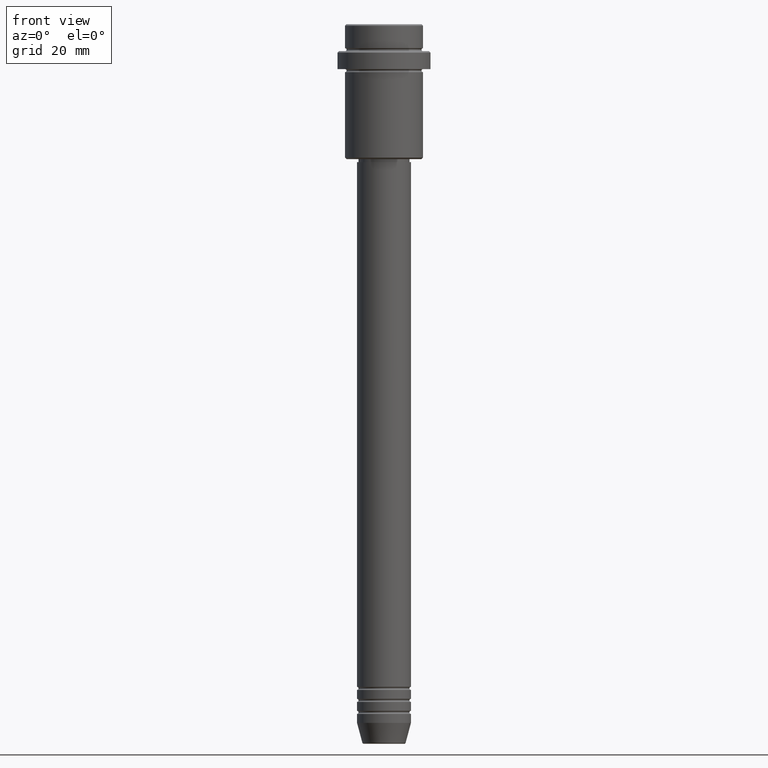
[diagram: clean part render]
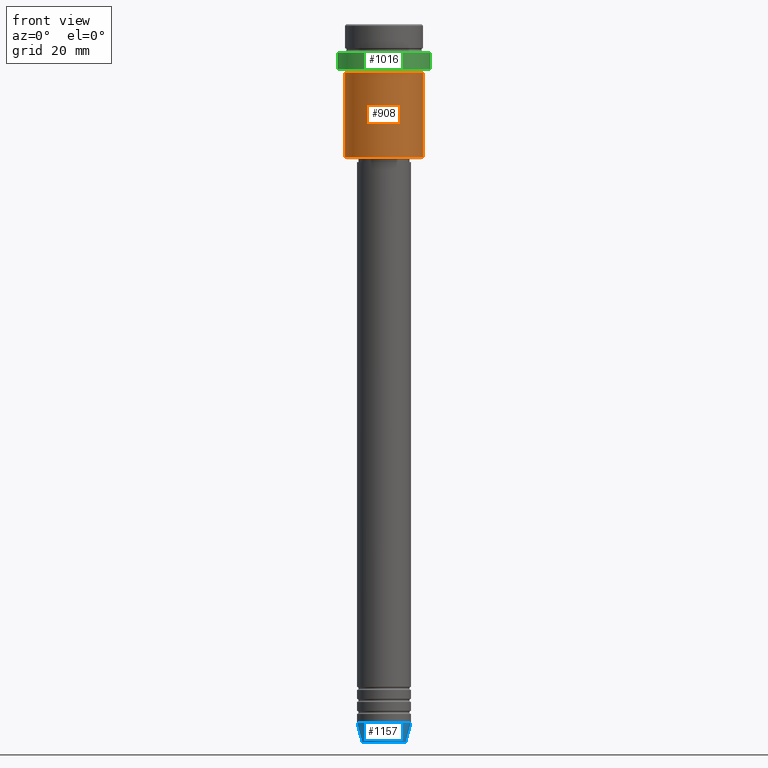
[diagram: same view with three faces highlighted in distinct colors, each labeled with its STEP entity id]
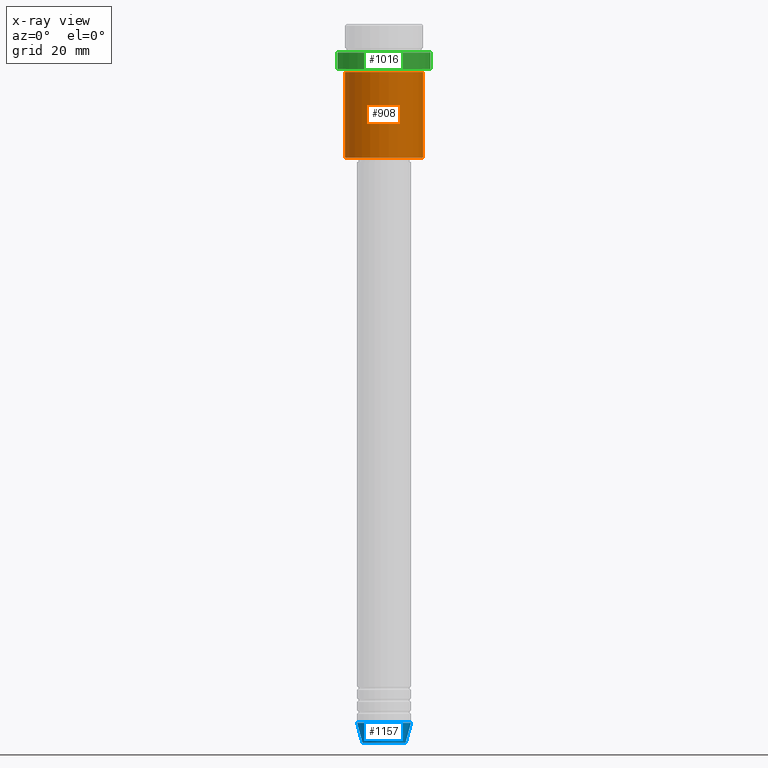
[diagram: x-ray of the same camera — body ghosted, the three highlighted faces saturated]
A machine part, front view with three faces highlighted in distinct colors.
The next image is the same camera in x-ray (body ghosted, the three faces saturated) — at least one of them is partly hidden behind the body in this view.
Their STEP definitions:

[orange] entity #908 — the highlighted cylindrical surface (partial cylindrical patch) has radius 13 mm, axis along (-0, -0, 1).
#41 = LINE ( 'NONE', #239, #841 ) ;
#74 = VERTEX_POINT ( 'NONE', #238 ) ;
#81 = VECTOR ( 'NONE', #403, 1000.000000000000000 ) ;
#86 = LINE ( 'NONE', #728, #81 ) ;
#213 = CARTESIAN_POINT ( 'NONE',  ( 0.000000000000000000, 0.000000000000000000, 0.000000000000000000 ) ) ;
#224 = CIRCLE ( 'NONE', #1406, 13.00000000000000000 ) ;
#238 = CARTESIAN_POINT ( 'NONE',  ( 13.00000000000000000, 0.000000000000000000, -16.00000000000000000 ) ) ;
#239 = CARTESIAN_POINT ( 'NONE',  ( -13.00000000000000000, 1.592040838891559095E-15, 0.000000000000000000 ) ) ;
#321 = ORIENTED_EDGE ( 'NONE', *, *, #1115, .T. ) ;
#324 = CARTESIAN_POINT ( 'NONE',  ( -13.00000000000000000, 1.592040838891559095E-15, -16.00000000000000000 ) ) ;
#403 = DIRECTION ( 'NONE',  ( -0.000000000000000000, -0.000000000000000000, 1.000000000000000000 ) ) ;
#454 = EDGE_LOOP ( 'NONE', ( #576, #1226, #321, #1158 ) ) ;
#526 = DIRECTION ( 'NONE',  ( 1.000000000000000000, 0.000000000000000000, 0.000000000000000000 ) ) ;
#547 = DIRECTION ( 'NONE',  ( -0.000000000000000000, -0.000000000000000000, 1.000000000000000000 ) ) ;
#575 = DIRECTION ( 'NONE',  ( -0.000000000000000000, -0.000000000000000000, 1.000000000000000000 ) ) ;
#576 = ORIENTED_EDGE ( 'NONE', *, *, #1386, .F. ) ;
#587 = CIRCLE ( 'NONE', #1383, 13.00000000000000000 ) ;
#634 = DIRECTION ( 'NONE',  ( -1.000000000000000000, 0.000000000000000000, 0.000000000000000000 ) ) ;
#648 = DIRECTION ( 'NONE',  ( 1.000000000000000000, 0.000000000000000000, 0.000000000000000000 ) ) ;
#656 = CYLINDRICAL_SURFACE ( 'NONE', #746, 13.00000000000000000 ) ;
#728 = CARTESIAN_POINT ( 'NONE',  ( 13.00000000000000000, 0.000000000000000000, 0.000000000000000000 ) ) ;
#746 = AXIS2_PLACEMENT_3D ( 'NONE', #213, #980, #648 ) ;
#841 = VECTOR ( 'NONE', #575, 1000.000000000000000 ) ;
#904 = VERTEX_POINT ( 'NONE', #324 ) ;
#908 = ADVANCED_FACE ( 'NONE', ( #1204 ), #656, .T. ) ;
#940 = DIRECTION ( 'NONE',  ( -0.000000000000000000, -0.000000000000000000, 1.000000000000000000 ) ) ;
#980 = DIRECTION ( 'NONE',  ( -0.000000000000000000, -0.000000000000000000, 1.000000000000000000 ) ) ;
#1044 = CARTESIAN_POINT ( 'NONE',  ( 0.000000000000000000, 0.000000000000000000, -44.50000000000007105 ) ) ;
#1099 = CARTESIAN_POINT ( 'NONE',  ( 0.000000000000000000, 0.000000000000000000, -16.00000000000000000 ) ) ;
#1115 = EDGE_CURVE ( 'NONE', #1295, #74, #86, .T. ) ;
#1146 = EDGE_CURVE ( 'NONE', #1250, #1295, #224, .T. ) ;
#1158 = ORIENTED_EDGE ( 'NONE', *, *, #1339, .F. ) ;
#1204 = FACE_OUTER_BOUND ( 'NONE', #454, .T. ) ;
#1226 = ORIENTED_EDGE ( 'NONE', *, *, #1146, .T. ) ;
#1250 = VERTEX_POINT ( 'NONE', #1399 ) ;
#1295 = VERTEX_POINT ( 'NONE', #1301 ) ;
#1301 = CARTESIAN_POINT ( 'NONE',  ( 13.00000000000000000, 0.000000000000000000, -44.50000000000007105 ) ) ;
#1339 = EDGE_CURVE ( 'NONE', #904, #74, #587, .T. ) ;
#1383 = AXIS2_PLACEMENT_3D ( 'NONE', #1099, #547, #526 ) ;
#1386 = EDGE_CURVE ( 'NONE', #1250, #904, #41, .T. ) ;
#1399 = CARTESIAN_POINT ( 'NONE',  ( -13.00000000000000000, 1.592040838891559095E-15, -44.50000000000007105 ) ) ;
#1406 = AXIS2_PLACEMENT_3D ( 'NONE', #1044, #940, #634 ) ;

[blue] entity #1157 — the highlighted conical surface has half-angle 15 deg.
#26 = DIRECTION ( 'NONE',  ( 1.000000000000000000, 0.000000000000000000, 0.000000000000000000 ) ) ;
#31 = VECTOR ( 'NONE', #529, 1000.000000000000114 ) ;
#97 = VERTEX_POINT ( 'NONE', #361 ) ;
#146 = AXIS2_PLACEMENT_3D ( 'NONE', #389, #825, #948 ) ;
#174 = AXIS2_PLACEMENT_3D ( 'NONE', #1276, #297, #394 ) ;
#296 = VERTEX_POINT ( 'NONE', #1362 ) ;
#297 = DIRECTION ( 'NONE',  ( -0.000000000000000000, -0.000000000000000000, 1.000000000000000000 ) ) ;
#326 = CARTESIAN_POINT ( 'NONE',  ( 9.000000000000000000, 0.000000000000000000, -233.0000000000000284 ) ) ;
#361 = CARTESIAN_POINT ( 'NONE',  ( -7.223655072137194821, 9.934123627281767082E-16, -239.6294095225512990 ) ) ;
#373 = EDGE_CURVE ( 'NONE', #984, #296, #1279, .T. ) ;
#389 = CARTESIAN_POINT ( 'NONE',  ( 0.000000000000000000, 0.000000000000000000, -239.6294095225512990 ) ) ;
#394 = DIRECTION ( 'NONE',  ( 1.000000000000000000, 0.000000000000000000, 0.000000000000000000 ) ) ;
#425 = CIRCLE ( 'NONE', #146, 7.223655072137194821 ) ;
#475 = EDGE_CURVE ( 'NONE', #97, #762, #1385, .T. ) ;
#487 = CARTESIAN_POINT ( 'NONE',  ( -9.000000000000000000, 1.102182119232617714E-15, -233.0000000000000284 ) ) ;
#529 = DIRECTION ( 'NONE',  ( 0.2588190451025205174, 0.000000000000000000, 0.9659258262890684232 ) ) ;
#568 = AXIS2_PLACEMENT_3D ( 'NONE', #781, #686, #26 ) ;
#686 = DIRECTION ( 'NONE',  ( -0.000000000000000000, -0.000000000000000000, 1.000000000000000000 ) ) ;
#695 = EDGE_CURVE ( 'NONE', #97, #984, #425, .T. ) ;
#726 = CONICAL_SURFACE ( 'NONE', #174, 9.000000000000000000, 0.2617993877991491303 ) ;
#727 = ORIENTED_EDGE ( 'NONE', *, *, #373, .T. ) ;
#750 = ORIENTED_EDGE ( 'NONE', *, *, #475, .F. ) ;
#762 = VERTEX_POINT ( 'NONE', #1367 ) ;
#781 = CARTESIAN_POINT ( 'NONE',  ( 0.000000000000000000, 0.000000000000000000, -233.0000000000000284 ) ) ;
#787 = CARTESIAN_POINT ( 'NONE',  ( 7.223655072137194821, 0.000000000000000000, -239.6294095225512990 ) ) ;
#825 = DIRECTION ( 'NONE',  ( -0.000000000000000000, -0.000000000000000000, 1.000000000000000000 ) ) ;
#876 = ORIENTED_EDGE ( 'NONE', *, *, #1412, .F. ) ;
#948 = DIRECTION ( 'NONE',  ( 1.000000000000000000, 0.000000000000000000, 0.000000000000000000 ) ) ;
#950 = VECTOR ( 'NONE', #1028, 1000.000000000000114 ) ;
#984 = VERTEX_POINT ( 'NONE', #787 ) ;
#1028 = DIRECTION ( 'NONE',  ( -0.2588190451025205174, 3.169619151431761243E-17, 0.9659258262890684232 ) ) ;
#1157 = ADVANCED_FACE ( 'NONE', ( #1371 ), #726, .T. ) ;
#1276 = CARTESIAN_POINT ( 'NONE',  ( 0.000000000000000000, 0.000000000000000000, -233.0000000000000284 ) ) ;
#1279 = LINE ( 'NONE', #326, #31 ) ;
#1294 = CIRCLE ( 'NONE', #568, 9.000000000000000000 ) ;
#1300 = EDGE_LOOP ( 'NONE', ( #750, #1322, #727, #876 ) ) ;
#1322 = ORIENTED_EDGE ( 'NONE', *, *, #695, .T. ) ;
#1362 = CARTESIAN_POINT ( 'NONE',  ( 9.000000000000000000, 0.000000000000000000, -233.0000000000000284 ) ) ;
#1367 = CARTESIAN_POINT ( 'NONE',  ( -9.000000000000000000, 1.102182119232617714E-15, -233.0000000000000284 ) ) ;
#1371 = FACE_OUTER_BOUND ( 'NONE', #1300, .T. ) ;
#1385 = LINE ( 'NONE', #487, #950 ) ;
#1412 = EDGE_CURVE ( 'NONE', #762, #296, #1294, .T. ) ;

[green] entity #1016 — the highlighted cylindrical surface (partial cylindrical patch) has radius 15.5 mm, axis along (-0, -0, 1).
#112 = CARTESIAN_POINT ( 'NONE',  ( -15.50000000000000000, 1.898202538678397557E-15, 0.000000000000000000 ) ) ;
#141 = CARTESIAN_POINT ( 'NONE',  ( 15.50000000000000000, 0.000000000000000000, -9.500000000000014211 ) ) ;
#148 = EDGE_LOOP ( 'NONE', ( #530, #418, #979, #760 ) ) ;
#150 = CIRCLE ( 'NONE', #1315, 15.50000000000000000 ) ;
#159 = EDGE_CURVE ( 'NONE', #1058, #1400, #1219, .T. ) ;
#192 = VECTOR ( 'NONE', #294, 1000.000000000000000 ) ;
#203 = EDGE_CURVE ( 'NONE', #1066, #1058, #499, .T. ) ;
#274 = DIRECTION ( 'NONE',  ( -0.000000000000000000, -0.000000000000000000, 1.000000000000000000 ) ) ;
#294 = DIRECTION ( 'NONE',  ( -0.000000000000000000, -0.000000000000000000, 1.000000000000000000 ) ) ;
#418 = ORIENTED_EDGE ( 'NONE', *, *, #1105, .T. ) ;
#459 = VERTEX_POINT ( 'NONE', #973 ) ;
#484 = DIRECTION ( 'NONE',  ( 1.000000000000000000, 0.000000000000000000, 0.000000000000000000 ) ) ;
#499 = LINE ( 'NONE', #1145, #192 ) ;
#530 = ORIENTED_EDGE ( 'NONE', *, *, #620, .F. ) ;
#542 = AXIS2_PLACEMENT_3D ( 'NONE', #705, #1323, #484 ) ;
#551 = DIRECTION ( 'NONE',  ( -0.000000000000000000, -0.000000000000000000, 1.000000000000000000 ) ) ;
#559 = CARTESIAN_POINT ( 'NONE',  ( 0.000000000000000000, 0.000000000000000000, -9.500000000000014211 ) ) ;
#561 = AXIS2_PLACEMENT_3D ( 'NONE', #559, #797, #1232 ) ;
#578 = CYLINDRICAL_SURFACE ( 'NONE', #542, 15.50000000000000000 ) ;
#619 = CARTESIAN_POINT ( 'NONE',  ( 0.000000000000000000, 0.000000000000000000, -15.00000000000000178 ) ) ;
#620 = EDGE_CURVE ( 'NONE', #459, #1400, #1319, .T. ) ;
#682 = CARTESIAN_POINT ( 'NONE',  ( -15.50000000000000000, 1.898202538678397557E-15, -9.500000000000014211 ) ) ;
#698 = VECTOR ( 'NONE', #551, 1000.000000000000000 ) ;
#705 = CARTESIAN_POINT ( 'NONE',  ( 0.000000000000000000, 0.000000000000000000, 0.000000000000000000 ) ) ;
#760 = ORIENTED_EDGE ( 'NONE', *, *, #159, .T. ) ;
#797 = DIRECTION ( 'NONE',  ( 0.000000000000000000, 0.000000000000000000, -1.000000000000000000 ) ) ;
#973 = CARTESIAN_POINT ( 'NONE',  ( -15.50000000000000000, 1.898202538678397557E-15, -15.00000000000000178 ) ) ;
#979 = ORIENTED_EDGE ( 'NONE', *, *, #203, .T. ) ;
#1016 = ADVANCED_FACE ( 'NONE', ( #1328 ), #578, .T. ) ;
#1058 = VERTEX_POINT ( 'NONE', #141 ) ;
#1066 = VERTEX_POINT ( 'NONE', #1162 ) ;
#1105 = EDGE_CURVE ( 'NONE', #459, #1066, #150, .T. ) ;
#1145 = CARTESIAN_POINT ( 'NONE',  ( 15.50000000000000000, 0.000000000000000000, 0.000000000000000000 ) ) ;
#1162 = CARTESIAN_POINT ( 'NONE',  ( 15.50000000000000000, 0.000000000000000000, -15.00000000000000178 ) ) ;
#1219 = CIRCLE ( 'NONE', #561, 15.50000000000000000 ) ;
#1232 = DIRECTION ( 'NONE',  ( 1.000000000000000000, 0.000000000000000000, 0.000000000000000000 ) ) ;
#1315 = AXIS2_PLACEMENT_3D ( 'NONE', #619, #274, #1377 ) ;
#1319 = LINE ( 'NONE', #112, #698 ) ;
#1323 = DIRECTION ( 'NONE',  ( -0.000000000000000000, -0.000000000000000000, 1.000000000000000000 ) ) ;
#1328 = FACE_OUTER_BOUND ( 'NONE', #148, .T. ) ;
#1377 = DIRECTION ( 'NONE',  ( 1.000000000000000000, 0.000000000000000000, 0.000000000000000000 ) ) ;
#1400 = VERTEX_POINT ( 'NONE', #682 ) ;